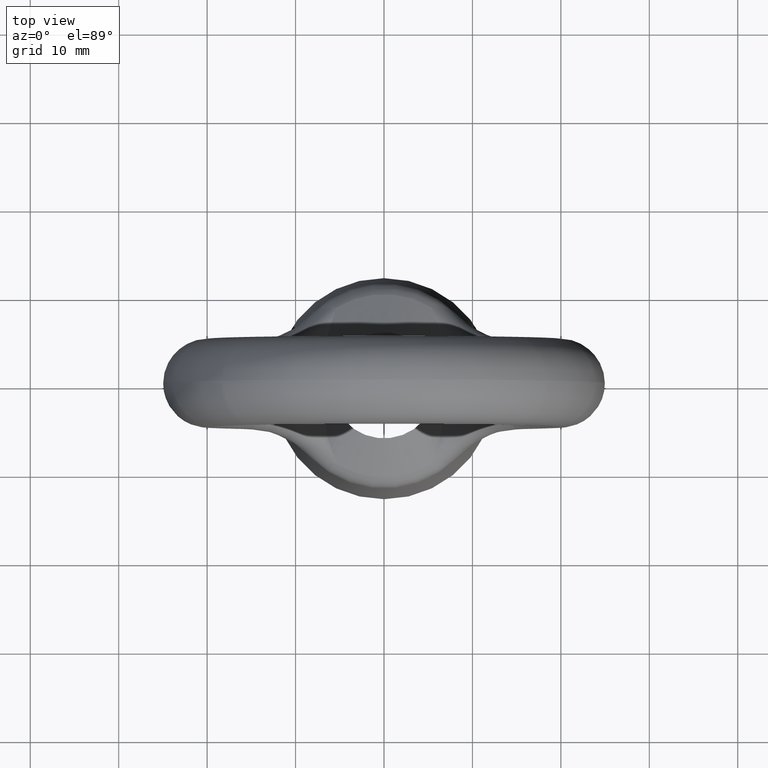
[diagram: clean part render]
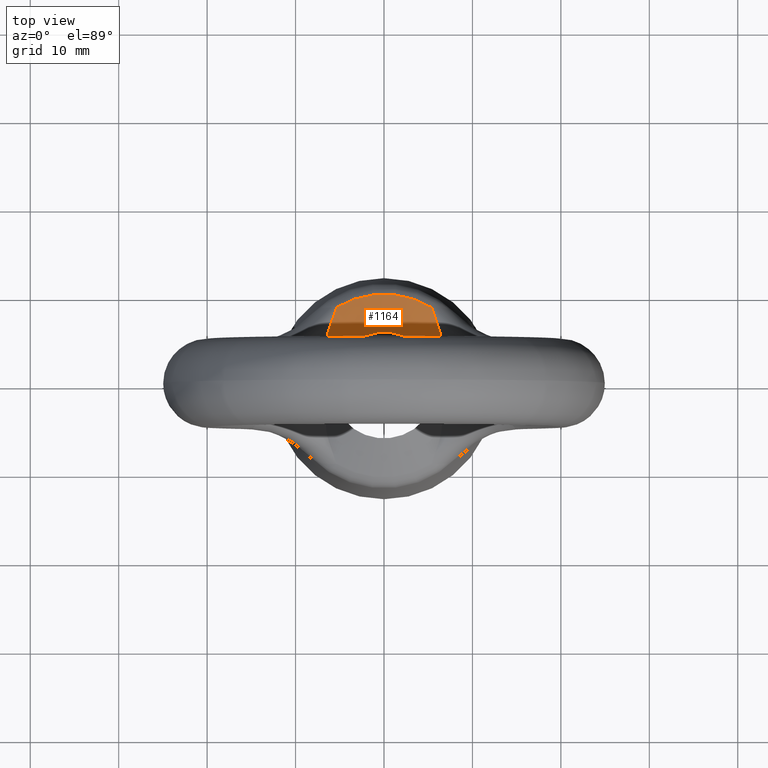
[diagram: same view with one face highlighted and labeled with its STEP entity id]
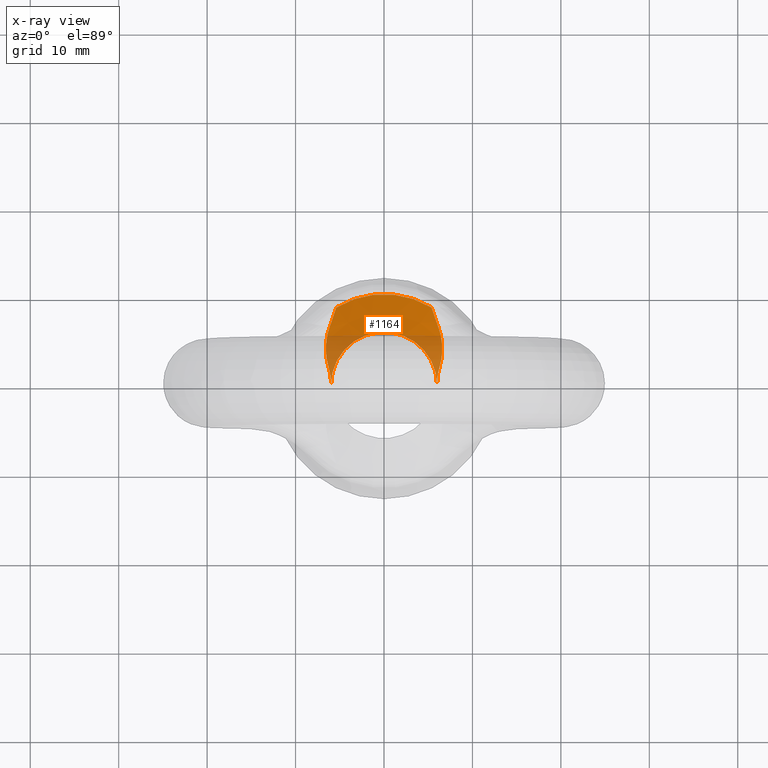
[diagram: x-ray of the same camera — body ghosted, the highlighted face saturated]
A machine part, top view. The second image highlights one B-rep face of the part: STEP entity #1164.
The next image is the same camera in x-ray: the body ghosted, the highlighted face saturated — about 25% of this face is hidden behind the body in this view.
In plain terms, the highlighted conical surface has half-angle 59.403 deg.
Its self-contained STEP definition (entity closure, byte-faithful):
#1 = VERTEX_POINT ( 'NONE', #2282 ) ;
#4 = VERTEX_POINT ( 'NONE', #2277 ) ;
#8 = ORIENTED_EDGE ( 'NONE', *, *, #9, .T. ) ;
#9 = EDGE_CURVE ( 'NONE', #4, #1, #2273, .T. ) ;
#1164 = ADVANCED_FACE ( 'NONE', ( #2274 ), #2266, .T. ) ;
#1940 = EDGE_LOOP ( 'NONE', ( #8, #2087, #2090, #2092, #2116, #1997 ) ) ;
#1948 = VERTEX_POINT ( 'NONE', #2051 ) ;
#1984 = VERTEX_POINT ( 'NONE', #2675 ) ;
#1996 = VERTEX_POINT ( 'NONE', #2728 ) ;
#1997 = ORIENTED_EDGE ( 'NONE', *, *, #2082, .T. ) ;
#2001 = EDGE_CURVE ( 'NONE', #1948, #1984, #2721, .T. ) ;
#2051 = CARTESIAN_POINT ( 'NONE',  ( -6.000000000000000000, 0.0000000000000000000, -13.74772600000000000 ) ) ;
#2082 = EDGE_CURVE ( 'NONE', #1996, #4, #11202, .T. ) ;
#2087 = ORIENTED_EDGE ( 'NONE', *, *, #2088, .T. ) ;
#2088 = EDGE_CURVE ( 'NONE', #1, #2089, #11158, .T. ) ;
#2089 = VERTEX_POINT ( 'NONE', #11159 ) ;
#2090 = ORIENTED_EDGE ( 'NONE', *, *, #2091, .F. ) ;
#2091 = EDGE_CURVE ( 'NONE', #1948, #2089, #11156, .T. ) ;
#2092 = ORIENTED_EDGE ( 'NONE', *, *, #2001, .T. ) ;
#2116 = ORIENTED_EDGE ( 'NONE', *, *, #2117, .F. ) ;
#2117 = EDGE_CURVE ( 'NONE', #1996, #1984, #11125, .T. ) ;
#2174 = DIRECTION ( 'NONE',  ( -1.000000000000000000, 0.0000000000000000000, 0.0000000000000000000 ) ) ;
#2175 = DIRECTION ( 'NONE',  ( 0.0000000000000000000, 0.0000000000000000000, -1.000000000000000000 ) ) ;
#2265 = AXIS2_PLACEMENT_3D ( 'NONE', #2268, #2175, #2174 ) ;
#2266 = CONICAL_SURFACE ( 'NONE', #2265, 11.49999118518192100, 1.036781442377381100 ) ;
#2268 = CARTESIAN_POINT ( 'NONE',  ( 0.0000000000000000000, 0.0000000000000000000, -16.99999700000000000 ) ) ;
#2269 = DIRECTION ( 'NONE',  ( 1.000000000000000000, 0.0000000000000000000, 0.0000000000000000000 ) ) ;
#2270 = DIRECTION ( 'NONE',  ( 0.0000000000000000000, 0.0000000000000000000, 1.000000000000000000 ) ) ;
#2271 = CARTESIAN_POINT ( 'NONE',  ( 0.0000000000000000000, 0.0000000000000000000, -16.31783482939199800 ) ) ;
#2272 = AXIS2_PLACEMENT_3D ( 'NONE', #2271, #2270, #2269 ) ;
#2273 = CIRCLE ( 'NONE', #2272, 10.34637086104270100 ) ;
#2274 = FACE_OUTER_BOUND ( 'NONE', #1940, .T. ) ;
#2277 = CARTESIAN_POINT ( 'NONE',  ( 5.377352643209940600, 8.839200673409140000, -16.31783482939199800 ) ) ;
#2282 = CARTESIAN_POINT ( 'NONE',  ( -5.377352643209910400, 8.839200673409159500, -16.31783482939199800 ) ) ;
#2675 = CARTESIAN_POINT ( 'NONE',  ( 6.000000000000000000, 0.0000000000000000000, -13.74772599999995900 ) ) ;
#2717 = DIRECTION ( 'NONE',  ( -1.000000000000000000, 0.0000000000000000000, 0.0000000000000000000 ) ) ;
#2718 = DIRECTION ( 'NONE',  ( 0.0000000000000000000, 0.0000000000000000000, -1.000000000000000000 ) ) ;
#2719 = CARTESIAN_POINT ( 'NONE',  ( 0.0000000000000000000, 0.0000000000000000000, -13.74772600000000000 ) ) ;
#2720 = AXIS2_PLACEMENT_3D ( 'NONE', #2719, #2718, #2717 ) ;
#2721 = CIRCLE ( 'NONE', #2720, 6.000000000000000000 ) ;
#2728 = CARTESIAN_POINT ( 'NONE',  ( 6.275957843287599800, 2.041516427262265200, -14.10231531665424000 ) ) ;
#11117 = CARTESIAN_POINT ( 'NONE',  ( 6.000000000000000000, 0.0000000000000000000, -13.74772599999995900 ) ) ;
#11118 = CARTESIAN_POINT ( 'NONE',  ( 6.000001053483438300, 0.3504006684949128600, -13.74772662118588700 ) ) ;
#11119 = CARTESIAN_POINT ( 'NONE',  ( 6.020823813091262800, 0.7000108096584717300, -13.77859887902872800 ) ) ;
#11120 = CARTESIAN_POINT ( 'NONE',  ( 6.111031164038159600, 1.392009448283119600, -13.90070011183858500 ) ) ;
#11121 = CARTESIAN_POINT ( 'NONE',  ( 6.179245267279329200, 1.723825696552170800, -13.98982054532003800 ) ) ;
#11122 = CARTESIAN_POINT ( 'NONE',  ( 6.275957843287599800, 2.041516427262265200, -14.10231531665424000 ) ) ;
#11125 = B_SPLINE_CURVE_WITH_KNOTS ( 'NONE', 3,
 ( #11122, #11121, #11120, #11119, #11118, #11117 ),
 .UNSPECIFIED., .F., .F.,
 ( 4, 2, 4 ),
 ( 0.006118880421807719100, 0.007165681863826863500, 0.008212483305846007800 ),
 .UNSPECIFIED. ) ;
#11130 = CARTESIAN_POINT ( 'NONE',  ( -6.275957843287599800, 2.041516427262270100, -14.10231531665424000 ) ) ;
#11131 = CARTESIAN_POINT ( 'NONE',  ( -6.178498510641108300, 1.721372678838709600, -13.98895192801370000 ) ) ;
#11132 = CARTESIAN_POINT ( 'NONE',  ( -6.110860768015212900, 1.389994756660810400, -13.90045655270017600 ) ) ;
#11135 = CARTESIAN_POINT ( 'NONE',  ( -6.021490864335722100, 0.7058315180901156800, -13.77951462015350300 ) ) ;
#11136 = CARTESIAN_POINT ( 'NONE',  ( -6.000001057648354700, 0.3502639382569823800, -13.74772662717408200 ) ) ;
#11137 = CARTESIAN_POINT ( 'NONE',  ( -6.000000000000000000, 0.0000000000000000000, -13.74772600000000000 ) ) ;
#11138 = CARTESIAN_POINT ( 'NONE',  ( -6.275957843287599800, 2.041516427262270100, -14.10231531665424000 ) ) ;
#11139 = CARTESIAN_POINT ( 'NONE',  ( -6.446257093620301000, 2.600931712332821300, -14.30040512064131300 ) ) ;
#11140 = CARTESIAN_POINT ( 'NONE',  ( -6.545543853880055000, 3.171279231071206800, -14.49089258911269000 ) ) ;
#11141 = CARTESIAN_POINT ( 'NONE',  ( -6.588372985239141500, 4.042187782390643100, -14.76815088601140500 ) ) ;
#11142 = CARTESIAN_POINT ( 'NONE',  ( -6.584673798911950400, 4.336284277879624200, -14.85952151325035700 ) ) ;
#11143 = CARTESIAN_POINT ( 'NONE',  ( -6.540309408307305900, 4.924218852532505700, -15.03851489169132400 ) ) ;
#11144 = CARTESIAN_POINT ( 'NONE',  ( -6.499970521036369900, 5.214933981539302500, -15.12518433901122300 ) ) ;
#11145 = CARTESIAN_POINT ( 'NONE',  ( -6.385798669028867300, 5.789960168440504900, -15.29466877942100000 ) ) ;
#11146 = CARTESIAN_POINT ( 'NONE',  ( -6.311689591195173100, 6.074239352222560800, -15.37738165366279100 ) ) ;
#11147 = CARTESIAN_POINT ( 'NONE',  ( -6.137151311584109000, 6.636851843477715300, -15.54285025783459800 ) ) ;
#11151 = CARTESIAN_POINT ( 'NONE',  ( -6.036379557868365900, 6.915283398815633500, -15.62561334555835700 ) ) ;
#11152 = CARTESIAN_POINT ( 'NONE',  ( -5.831926945567879300, 7.467658016766169000, -15.80060161177227200 ) ) ;
#11153 = CARTESIAN_POINT ( 'NONE',  ( -5.729747271965212700, 7.741926198706865500, -15.89347629995654600 ) ) ;
#11154 = CARTESIAN_POINT ( 'NONE',  ( -5.541955642221005900, 8.290470268810121700, -16.09495938269170900 ) ) ;
#11155 = CARTESIAN_POINT ( 'NONE',  ( -5.455629065682307700, 8.565345021482366800, -16.20354401146564200 ) ) ;
#11156 = B_SPLINE_CURVE_WITH_KNOTS ( 'NONE', 3,
 ( #11137, #11136, #11135, #11132, #11131, #11130 ),
 .UNSPECIFIED., .F., .F.,
 ( 4, 2, 4 ),
 ( 0.008212483305846004400, 0.009258875969322752000, 0.01030526863279949800 ),
 .UNSPECIFIED. ) ;
#11157 = CARTESIAN_POINT ( 'NONE',  ( -5.377352643209910400, 8.839200673409159500, -16.31783482939199800 ) ) ;
#11158 = B_SPLINE_CURVE_WITH_KNOTS ( 'NONE', 3,
 ( #11157, #11155, #11154, #11153, #11152, #11151, #11147, #11146, #11145, #11144, #11143, #11142, #11141, #11140, #11139, #11138 ),
 .UNSPECIFIED., .F., .F.,
 ( 4, 2, 2, 2, 2, 2, 2, 4 ),
 ( -1.760032737385041800E-005, 0.0009030942652278691900, 0.001823788857829588800, 0.002744483450431308800, 0.003665178043033028400, 0.004585872635634748300, 0.005506567228236467500, 0.007347956413439910000 ),
 .UNSPECIFIED. ) ;
#11159 = CARTESIAN_POINT ( 'NONE',  ( -6.275957843287599800, 2.041516427262270100, -14.10231531665424000 ) ) ;
#11161 = CARTESIAN_POINT ( 'NONE',  ( 5.377352643209940600, 8.839200673409140000, -16.31783482939199800 ) ) ;
#11162 = CARTESIAN_POINT ( 'NONE',  ( 5.416163547719707900, 8.703417953399117800, -16.26116731853036900 ) ) ;
#11163 = CARTESIAN_POINT ( 'NONE',  ( 5.457571432982051700, 8.564868178082964100, -16.20483864043805900 ) ) ;
#11164 = CARTESIAN_POINT ( 'NONE',  ( 5.543766662977650300, 8.290557248473875900, -16.09686310229421500 ) ) ;
#11165 = CARTESIAN_POINT ( 'NONE',  ( 5.588863800899903600, 8.153453348318199900, -16.04463340956527900 ) ) ;
#11166 = CARTESIAN_POINT ( 'NONE',  ( 5.729707275470451200, 7.742037053445999500, -15.89351491361839700 ) ) ;
#11167 = CARTESIAN_POINT ( 'NONE',  ( 5.831887482926613400, 7.467763518217991800, -15.80063637390778400 ) ) ;
#11168 = CARTESIAN_POINT ( 'NONE',  ( 6.036344679275283700, 6.915378746486915400, -15.62564221145305200 ) ) ;
#11169 = CARTESIAN_POINT ( 'NONE',  ( 6.137120542395549300, 6.636942173708201900, -15.54287704161042800 ) ) ;
#11170 = CARTESIAN_POINT ( 'NONE',  ( 6.311667472956378000, 6.074319498401265200, -15.37740500835864000 ) ) ;
#11171 = CARTESIAN_POINT ( 'NONE',  ( 6.385780984080784400, 5.790035154608081500, -15.29469072992095500 ) ) ;
#11172 = CARTESIAN_POINT ( 'NONE',  ( 6.499960529262387400, 5.214998385685053300, -15.12520347267184600 ) ) ;
#11173 = CARTESIAN_POINT ( 'NONE',  ( 6.540302732059493500, 4.924277841402178200, -15.03853263224082700 ) ) ;
#11174 = CARTESIAN_POINT ( 'NONE',  ( 6.584672409077739100, 4.336332178581010900, -14.85953631459059400 ) ) ;
#11175 = CARTESIAN_POINT ( 'NONE',  ( 6.588373556900328300, 4.042229041519976600, -14.76816384126178000 ) ) ;
#11176 = CARTESIAN_POINT ( 'NONE',  ( 6.545547901337668500, 3.171302270064931600, -14.49090028328317300 ) ) ;
#11177 = CARTESIAN_POINT ( 'NONE',  ( 6.446260533766122500, 2.600943012853230000, -14.30040912217279500 ) ) ;
#11178 = CARTESIAN_POINT ( 'NONE',  ( 6.275957843287599800, 2.041516427262265200, -14.10231531665424000 ) ) ;
#11202 = B_SPLINE_CURVE_WITH_KNOTS ( 'NONE', 3,
 ( #11178, #11177, #11176, #11175, #11174, #11173, #11172, #11171, #11170, #11169, #11168, #11167, #11166, #11165, #11164, #11163, #11162, #11161 ),
 .UNSPECIFIED., .F., .F.,
 ( 4, 2, 2, 2, 2, 2, 2, 2, 4 ),
 ( 0.0000000000000000000, 0.001825989935976927600, 0.002738984903965391600, 0.003651979871953855100, 0.004564974839942318200, 0.005477969807930783100, 0.006390964775919246200, 0.006847462259913477400, 0.007303959743907708500 ),
 .UNSPECIFIED. ) ;